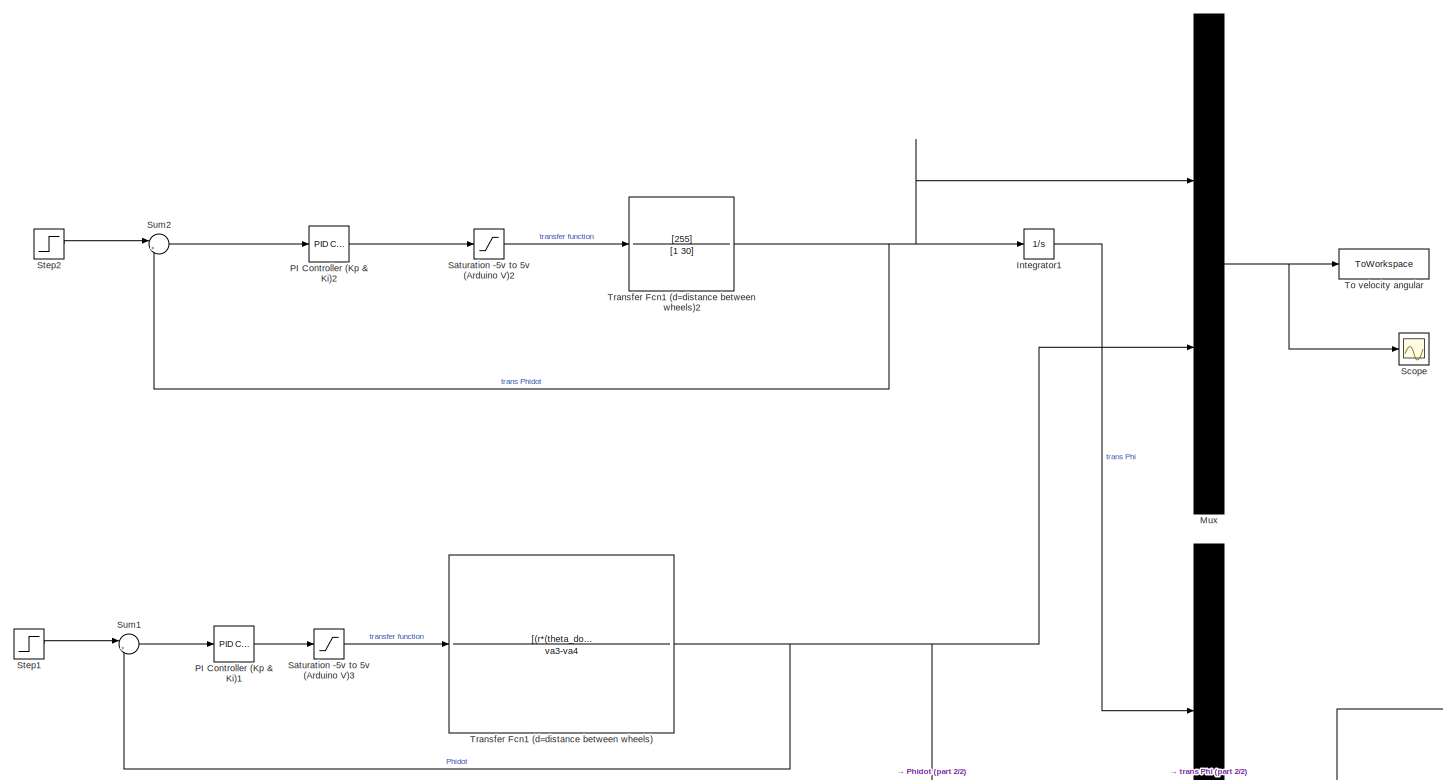
[diagram: root canvas - part 1/2, full width, middle band]
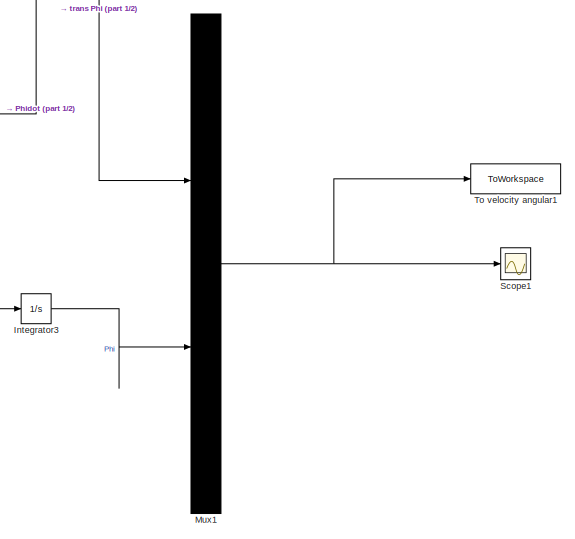
[diagram: root canvas - part 2/2, bottom right region]
MODEL slx_b2deac2a7381
KIND model
CONFIG AbsTol = auto
CONFIG EnableMultiTasking = off
CONFIG FixedStep = auto
CONFIG MaxStep = auto
CONFIG MinStep = auto
CONFIG RelTol = 1e-3
CONFIG SampleTimeConstraint = Unconstrained
CONFIG SolverName = VariableStepAuto
CONFIG StartTime = 0.0
CONFIG StopTime = 10.0
BLOCK [Integrator] Integrator1
  Ports = [1, 1]
BLOCK [Integrator] Integrator3
  Ports = [1, 1]
BLOCK [Mux] Mux
  DisplayOption = bar
  Inputs = 2
  Ports = [2, 1]
BLOCK [Mux] Mux1
  DisplayOption = bar
  Inputs = 2
  Ports = [2, 1]
BLOCK [Reference] PI Controller (Kp & Ki)1  REF=slpidlib/PID Controller
  Ports = [1, 1]
  SourceBlock = slpidlib/PID Controller
  SourceProductBaseCode = SL
  SourceType = PID 1dof
BLOCK [Reference] PI Controller (Kp & Ki)2  REF=slpidlib/PID Controller
  Ports = [1, 1]
  SourceBlock = slpidlib/PID Controller
  SourceProductBaseCode = SL
  SourceType = PID 1dof
BLOCK [Saturate] Saturation -5v to 5v (Arduino V)2
  LowerLimit = -5
  UpperLimit = 5
BLOCK [Saturate] Saturation -5v to 5v (Arduino V)3
  LowerLimit = -5
  UpperLimit = 5
BLOCK [Scope] Scope
  Floating = off
  NumInputPorts = 1
  Ports = [1]
  ScopeSpecificationString = Simulink.scopes.TimeScopeBlockCfg('CurrentConfiguration', extmgr.ConfigurationSet(extmgr.Configuration('Core','General UI',true),extmgr.Configuration('Core','Source UI',true),extmgr.Configuration('Sources','WiredSimulink',true),extmgr.Configuration('Visuals','Time Domain',true,'SerializedDisplays',{struct('MinYLimReal','-4.43611','MaxYLimReal','5.4124','YLabelReal','','MinYLimMag','0.00000','MaxYL...<+1434ch>
BLOCK [Scope] Scope1
  Floating = off
  NumInputPorts = 1
  Ports = [1]
  ScopeSpecificationString = Simulink.scopes.TimeScopeBlockCfg('CurrentConfiguration', extmgr.ConfigurationSet(extmgr.Configuration('Core','General UI',true),extmgr.Configuration('Core','Source UI',true),extmgr.Configuration('Sources','WiredSimulink',true,'DataLoggingVariableName','ScopeData1'),extmgr.Configuration('Visuals','Time Domain',true,'SerializedDisplays',{struct('MinYLimReal','-4.43611','MaxYLimReal','5.4124','YLabe...<+1464ch>
BLOCK [Step] Step1
  SampleTime = 0
BLOCK [Step] Step2
  SampleTime = 0
BLOCK [Sum] Sum1
  Inputs = |+-
  NameLocation = top
  Ports = [2, 1]
BLOCK [Sum] Sum2
  Inputs = |+-
  NameLocation = top
  Ports = [2, 1]
BLOCK [ToWorkspace] To velocity angular
  FixptAsFi = on
  MaxDataPoints = inf
  Ports = [1]
  SampleTime = -1
  SaveFormat = Timeseries
  VariableName = phi_dot
BLOCK [ToWorkspace] To velocity angular1
  FixptAsFi = on
  MaxDataPoints = inf
  Ports = [1]
  SampleTime = -1
  SaveFormat = Timeseries
  VariableName = phi
BLOCK [TransferFcn] Transfer Fcn1 (d=distance between wheels)
  Denominator = va3-va4
  Numerator = [(r*(theta_dot3-theta_dot4))/12]
BLOCK [TransferFcn] Transfer Fcn1 (d=distance between wheels)2
  Denominator = [1 30]
  Numerator = [255]
LINE Integrator1:1 -> Mux1:1
LINE Integrator3:1 -> Mux1:2
NET Mux1:1 -> Scope1:1, To velocity angular1:1
NET Mux:1 -> Scope:1, To velocity angular:1
LINE PI Controller (Kp & Ki)1:1 -> Saturation -5v to 5v (Arduino V)3:1
LINE PI Controller (Kp & Ki)2:1 -> Saturation -5v to 5v (Arduino V)2:1
LINE Saturation -5v to 5v (Arduino V)2:1 -> Transfer Fcn1 (d=distance between wheels)2:1
LINE Saturation -5v to 5v (Arduino V)3:1 -> Transfer Fcn1 (d=distance between wheels):1
LINE Step1:1 -> Sum1:1
LINE Step2:1 -> Sum2:1
LINE Sum1:1 -> PI Controller (Kp & Ki)1:1
LINE Sum2:1 -> PI Controller (Kp & Ki)2:1
NET Transfer Fcn1 (d=distance between wheels)2:1 -> Integrator1:1, Mux:1, Sum2:2
NET Transfer Fcn1 (d=distance between wheels):1 -> Integrator3:1, Mux:2, Sum1:2
note: NET lines group one-source signal fan-out (src -> all destinations, sorted); 1:1 wires keep LINE
